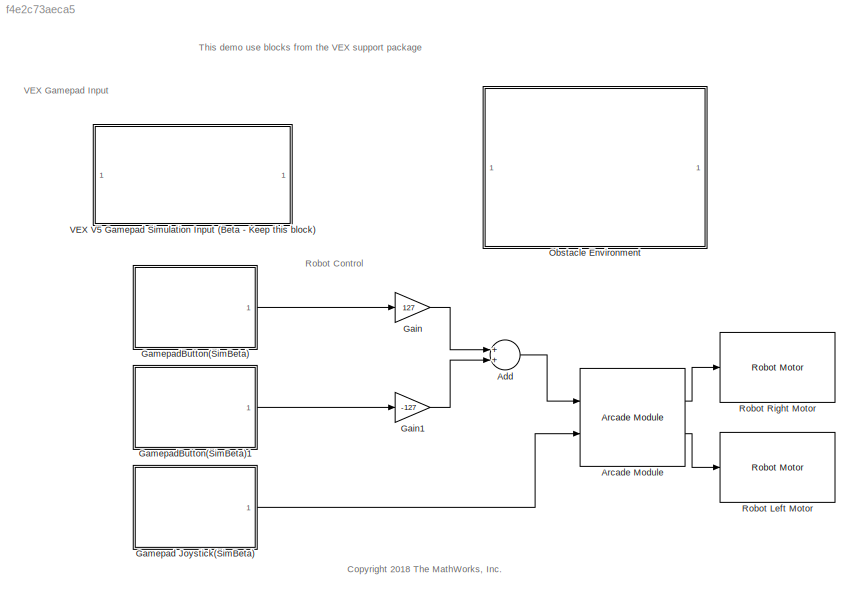
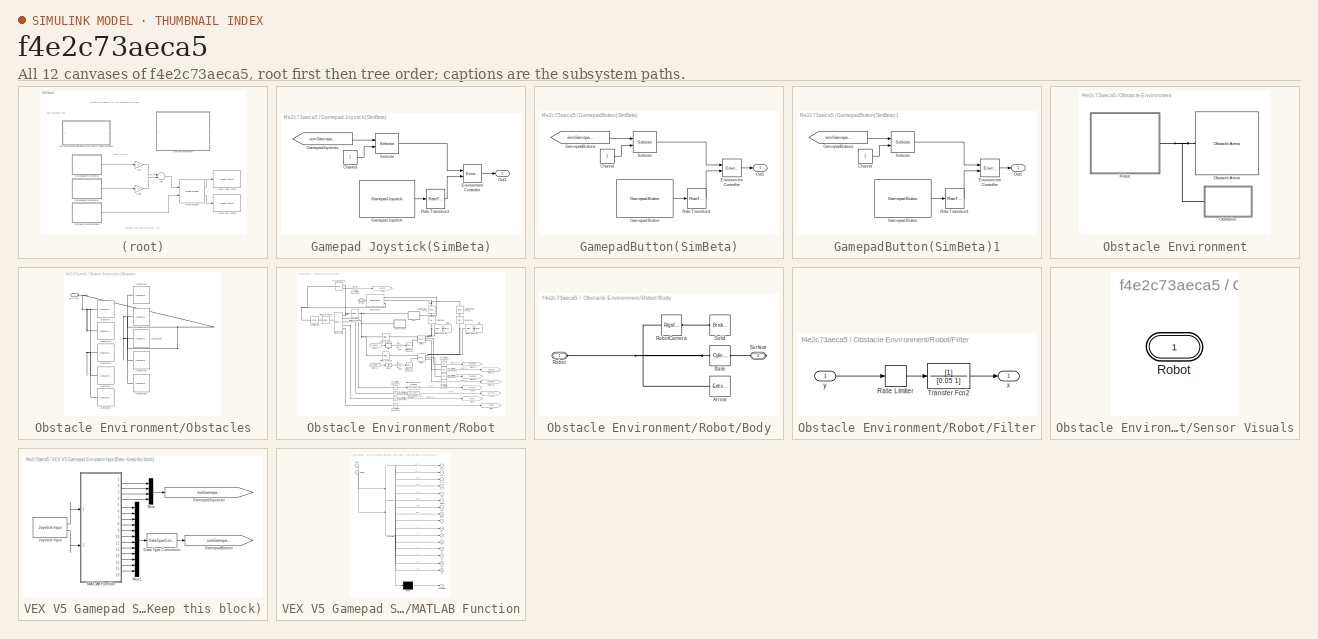
[diagram: thumbnail index - all 12 canvases of the model, root first then tree order]
MODEL slx_f4e2c73aeca5
KIND model
CONFIG AbsTol = auto
CONFIG EnableMultiTasking = on
CONFIG FixedStep = 0.01
CONFIG InitFcn = RPInit
CONFIG MaxStep = auto
CONFIG MinStep = auto
CONFIG RelTol = 1e-3
CONFIG SampleTimeConstraint = Unconstrained
CONFIG Solver = VariableStepAuto
CONFIG SolverName = VariableStepAuto
CONFIG StartTime = 0.0
CONFIG StopTime = inf
WORKSPACE source: mxarray member
WORKSPACE mapForSim: object (value not decoded)
WORKSPACE occGrid: robotics.BinaryOccupancyGrid (value not decoded)
BLOCK [Sum] Add
  InputSameDT = off
  OutDataTypeStr = Inherit: Inherit via internal rule
  Ports = [2, 1]
  SaturateOnIntegerOverflow = off
BLOCK [Reference] Arcade Module  REF=vexcommonlib/Arcade Module
  Ports = [2, 2]
  SourceBlock = vexcommonlib/Arcade Module
  SourceProductBaseCode = EC_VEX_MICRO
  SourceProductName = Simulink Coder Support Package for ARM Cortex-based VEX Microcontroller
  SourceType = Arcade-2 Motors Module
BLOCK [Gain] Gain
  Gain = 127
  OutDataTypeStr = Inherit: Inherit via internal rule
  ParamDataTypeStr = Inherit: Inherit via internal rule
  SaturateOnIntegerOverflow = off
BLOCK [Gain] Gain1
  Gain = -127
  OutDataTypeStr = Inherit: Inherit via internal rule
  ParamDataTypeStr = Inherit: Inherit via internal rule
  SaturateOnIntegerOverflow = off
BLOCK [SubSystem] Gamepad Joystick(SimBeta)
  Ports = [0, 1]
  RequestExecContextInheritance = off
BLOCK [Constant] Gamepad Joystick(SimBeta)/Channel
BLOCK [Reference] Gamepad Joystick(SimBeta)/Environment Controller  REF=simulink/Signal
Routing/Environment
Controller
  Ports = [2, 1]
  SourceBlock = simulink/Signal\nRouting/Environment\nController
  SourceProductBaseCode = SL
  SourceProductName = Simulink
  SourceType = Environment Controller
BLOCK [Reference] Gamepad Joystick(SimBeta)/Gamepad Joystick  REF=vexv5lib/Gamepad/Gamepad Joystick
  Ports = [0, 1]
  SourceBlock = vexv5lib/Gamepad/Gamepad Joystick
  SourceProductBaseCode = VEXV5
  SourceProductName = Simulink Coder Support Package for VEX EDR V5 Robot Brain
  SourceType = Gamepad Joystick
BLOCK [From] Gamepad Joystick(SimBeta)/GamepadJoysticks
  GotoTag = simGamepadJoysticks_1
  TagVisibility = global
BLOCK [Outport] Gamepad Joystick(SimBeta)/Out1
  IconDisplay = Port number
BLOCK [RateTransition] Gamepad Joystick(SimBeta)/Rate Transition1
BLOCK [Selector] Gamepad Joystick(SimBeta)/Selector
  IndexOptions = Index vector (port)
  Indices = [1 3]
  InputPortWidth = 4
  OutputSizes = 1
  Ports = [2, 1]
BLOCK [SubSystem] GamepadButton(SimBeta)
  Ports = [0, 1]
  RequestExecContextInheritance = off
BLOCK [Constant] GamepadButton(SimBeta)/Channel
BLOCK [Reference] GamepadButton(SimBeta)/Environment Controller  REF=simulink/Signal
Routing/Environment
Controller
  Ports = [2, 1]
  SourceBlock = simulink/Signal\nRouting/Environment\nController
  SourceProductBaseCode = SL
  SourceProductName = Simulink
  SourceType = Environment Controller
BLOCK [Reference] GamepadButton(SimBeta)/Gamepad Button  REF=vexv5lib/Gamepad/Gamepad Button
  Ports = [0, 1]
  SourceBlock = vexv5lib/Gamepad/Gamepad Button
  SourceProductBaseCode = VEXV5
  SourceProductName = Simulink Coder Support Package for VEX EDR V5 Robot Brain
  SourceType = Gamepad Button
BLOCK [From] GamepadButton(SimBeta)/GamepadButtons
  GotoTag = simGamepadButtons_1
  TagVisibility = global
BLOCK [Outport] GamepadButton(SimBeta)/Out1
  IconDisplay = Port number
BLOCK [RateTransition] GamepadButton(SimBeta)/Rate Transition1
BLOCK [Selector] GamepadButton(SimBeta)/Selector
  IndexOptions = Index vector (port)
  Indices = [1 3]
  InputPortWidth = 12
  OutputSizes = 1
  Ports = [2, 1]
BLOCK [SubSystem] GamepadButton(SimBeta)1
  Ports = [0, 1]
  RequestExecContextInheritance = off
BLOCK [Constant] GamepadButton(SimBeta)1/Channel
  Value = 2
BLOCK [Reference] GamepadButton(SimBeta)1/Environment Controller  REF=simulink/Signal
Routing/Environment
Controller
  Ports = [2, 1]
  SourceBlock = simulink/Signal\nRouting/Environment\nController
  SourceProductBaseCode = SL
  SourceProductName = Simulink
  SourceType = Environment Controller
BLOCK [Reference] GamepadButton(SimBeta)1/Gamepad Button  REF=vexv5lib/Gamepad/Gamepad Button
  Ports = [0, 1]
  SourceBlock = vexv5lib/Gamepad/Gamepad Button
  SourceProductBaseCode = VEXV5
  SourceProductName = Simulink Coder Support Package for VEX EDR V5 Robot Brain
  SourceType = Gamepad Button
BLOCK [From] GamepadButton(SimBeta)1/GamepadButtons
  GotoTag = simGamepadButtons_1
  TagVisibility = global
BLOCK [Outport] GamepadButton(SimBeta)1/Out1
  IconDisplay = Port number
BLOCK [RateTransition] GamepadButton(SimBeta)1/Rate Transition1
BLOCK [Selector] GamepadButton(SimBeta)1/Selector
  IndexOptions = Index vector (port)
  Indices = [1 3]
  InputPortWidth = 12
  OutputSizes = 1
  Ports = [2, 1]
BLOCK [SubSystem] Obstacle Environment
  CopyFcn = set_param(gcs,'InitFcn','RPInit');\nset_param(gcs,'Solver','ode23t');\nset_param(gcs, 'EnablePacing', 'on')\nset_param(gcs, 'PacingRate', 1)
  Ports = []
  RequestExecContextInheritance = off
BLOCK [Reference] Obstacle Environment/Obstacle Arena  REF=RP_Simulator_Components/Obstacle Arena
  Ports = [0, 0, 0, 0, 0, 1]
  SourceBlock = RP_Simulator_Components/Obstacle Arena
  SourceType = RP Grid Arena
BLOCK [SubSystem] Obstacle Environment/Obstacles
  Ports = [0, 0, 0, 0, 0, 1]
  RequestExecContextInheritance = off
BLOCK [Reference] Obstacle Environment/Obstacles/Obstacle1  REF=RP_Simulator_Components/Obstacle Contact-Disc Robot
  Ports = [0, 0, 0, 0, 0, 1]
  SourceBlock = RP_Simulator_Components/Obstacle Contact-Disc Robot
  SourceType = RP Rectangle-Disc obstacle
BLOCK [Reference] Obstacle Environment/Obstacles/Obstacle10  REF=RP_Simulator_Components/Obstacle Contact-Disc Robot
  Commented = on
  Ports = [0, 0, 0, 0, 0, 1]
  SourceBlock = RP_Simulator_Components/Obstacle Contact-Disc Robot
  SourceType = RP Rectangle-Disc obstacle
BLOCK [Reference] Obstacle Environment/Obstacles/Obstacle2  REF=RP_Simulator_Components/Obstacle Contact-Disc Robot
  Ports = [0, 0, 0, 0, 0, 1]
  SourceBlock = RP_Simulator_Components/Obstacle Contact-Disc Robot
  SourceType = RP Rectangle-Disc obstacle
BLOCK [Reference] Obstacle Environment/Obstacles/Obstacle3  REF=RP_Simulator_Components/Obstacle Contact-Disc Robot
  Commented = on
  Ports = [0, 0, 0, 0, 0, 1]
  SourceBlock = RP_Simulator_Components/Obstacle Contact-Disc Robot
  SourceType = RP Rectangle-Disc obstacle
BLOCK [Reference] Obstacle Environment/Obstacles/Obstacle4  REF=RP_Simulator_Components/Obstacle Contact-Disc Robot
  Commented = on
  Ports = [0, 0, 0, 0, 0, 1]
  SourceBlock = RP_Simulator_Components/Obstacle Contact-Disc Robot
  SourceType = RP Rectangle-Disc obstacle
BLOCK [Reference] Obstacle Environment/Obstacles/Obstacle5  REF=RP_Simulator_Components/Obstacle Contact-Disc Robot
  Commented = on
  Ports = [0, 0, 0, 0, 0, 1]
  SourceBlock = RP_Simulator_Components/Obstacle Contact-Disc Robot
  SourceType = RP Rectangle-Disc obstacle
BLOCK [Reference] Obstacle Environment/Obstacles/Obstacle6  REF=RP_Simulator_Components/Obstacle Contact-Disc Robot
  Commented = on
  Ports = [0, 0, 0, 0, 0, 1]
  SourceBlock = RP_Simulator_Components/Obstacle Contact-Disc Robot
  SourceType = RP Rectangle-Disc obstacle
BLOCK [Reference] Obstacle Environment/Obstacles/Obstacle7  REF=RP_Simulator_Components/Obstacle Contact-Disc Robot
  Commented = on
  Ports = [0, 0, 0, 0, 0, 1]
  SourceBlock = RP_Simulator_Components/Obstacle Contact-Disc Robot
  SourceType = RP Rectangle-Disc obstacle
BLOCK [Reference] Obstacle Environment/Obstacles/Obstacle8  REF=RP_Simulator_Components/Obstacle Contact-Disc Robot
  Commented = on
  Ports = [0, 0, 0, 0, 0, 1]
  SourceBlock = RP_Simulator_Components/Obstacle Contact-Disc Robot
  SourceType = RP Rectangle-Disc obstacle
BLOCK [Reference] Obstacle Environment/Obstacles/Obstacle9  REF=RP_Simulator_Components/Obstacle Contact-Disc Robot
  Commented = on
  Ports = [0, 0, 0, 0, 0, 1]
  SourceBlock = RP_Simulator_Components/Obstacle Contact-Disc Robot
  SourceType = RP Rectangle-Disc obstacle
BLOCK [PMIOPort] Obstacle Environment/Obstacles/RP-Bus
  Side = Left
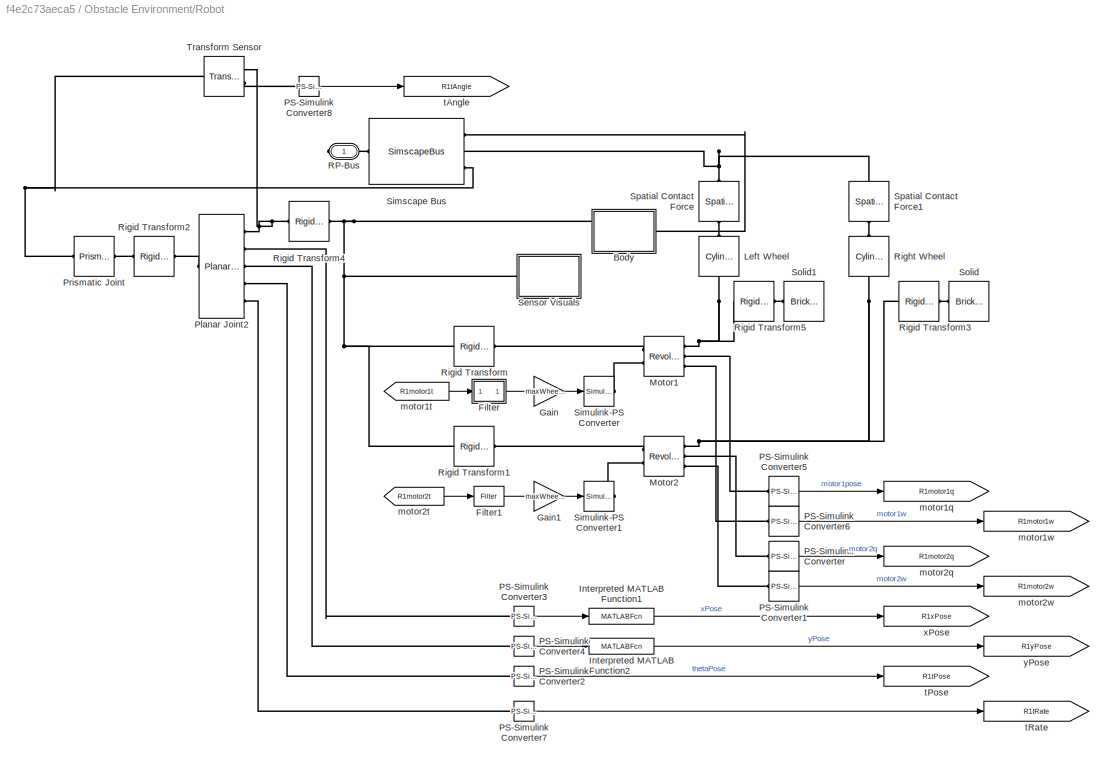
BLOCK [SubSystem] Obstacle Environment/Robot
  AncestorBlock = RP_Simulator_Components/Contact Tank Robot
  Ports = [0, 0, 0, 0, 0, 0, 1]
  RequestExecContextInheritance = off
BLOCK [SubSystem] Obstacle Environment/Robot/Body
  Ports = [0, 0, 0, 0, 0, 1, 1]
  RequestExecContextInheritance = off
BLOCK [Reference] Obstacle Environment/Robot/Body/Arrow  REF=sm_lib/Body Elements/Extruded Solid
  Ports = [0, 0, 0, 0, 0, 0, 1]
  SourceBlock = sm_lib/Body Elements/Extruded Solid
  SourceProductBaseCode = MS
  SourceProductName = Simscape Multibody
  SourceType = Extruded Solid
BLOCK [Reference] Obstacle Environment/Robot/Body/Base  REF=sm_lib/Body Elements/Cylindrical Solid
  Ports = [0, 0, 0, 0, 0, 1, 1]
  SourceBlock = sm_lib/Body Elements/Cylindrical Solid
  SourceProductBaseCode = MS
  SourceProductName = Simscape Multibody
  SourceType = Cylindrical Solid
BLOCK [PMIOPort] Obstacle Environment/Robot/Body/Robot
  Side = Left
BLOCK [Reference] Obstacle Environment/Robot/Body/RobotCamera  REF=sm_lib/Frames and
Transforms/Rigid
Transform
  Ports = [0, 0, 0, 0, 0, 1, 1]
  SourceBlock = sm_lib/Frames and\nTransforms/Rigid\nTransform
  SourceProductBaseCode = MS
  SourceProductName = Simscape Multibody
  SourceType = Rigid\nTransform
BLOCK [Reference] Obstacle Environment/Robot/Body/Solid  REF=sm_lib/Body Elements/Brick Solid
  Ports = [0, 0, 0, 0, 0, 0, 1]
  SourceBlock = sm_lib/Body Elements/Brick Solid
  SourceProductBaseCode = MS
  SourceProductName = Simscape Multibody
  SourceType = Brick Solid
BLOCK [PMIOPort] Obstacle Environment/Robot/Body/Surface
  Port = 2
  Side = Right
BLOCK [SubSystem] Obstacle Environment/Robot/Filter
  Ports = [1, 1]
  RequestExecContextInheritance = off
BLOCK [RateLimiter] Obstacle Environment/Robot/Filter/Rate Limiter
  FallingSlewLimit = -300
  RisingSlewLimit = 300
  SampleTimeMode = inherited
BLOCK [TransferFcn] Obstacle Environment/Robot/Filter/Transfer Fcn2
  Denominator = [0.05 1]
BLOCK [Outport] Obstacle Environment/Robot/Filter/x
  IconDisplay = Port number
  VectorParamsAs1DForOutWhenUnconnected = off
BLOCK [Inport] Obstacle Environment/Robot/Filter/y
  IconDisplay = Port number
BLOCK [Reference] Obstacle Environment/Robot/Filter1  REF=RP_Simulator_Components/Contact Tank Robot/Filter
  Ports = [1, 1]
  SourceBlock = RP_Simulator_Components/Contact Tank Robot/Filter
  SourceType = SubSystem
BLOCK [Gain] Obstacle Environment/Robot/Gain
  Gain = maxWheelTorque/127
  OutDataTypeStr = Inherit: Inherit via internal rule
  ParamDataTypeStr = Inherit: Inherit via internal rule
  SaturateOnIntegerOverflow = off
BLOCK [Gain] Obstacle Environment/Robot/Gain1
  Gain = maxWheelTorque/127
  OutDataTypeStr = Inherit: Inherit via internal rule
  ParamDataTypeStr = Inherit: Inherit via internal rule
  SaturateOnIntegerOverflow = off
BLOCK [MATLABFcn] Obstacle Environment/Robot/Interpreted MATLAB Function1
  MATLABFcn = u+floorSize(1)/2
  Ports = [1, 1]
BLOCK [MATLABFcn] Obstacle Environment/Robot/Interpreted MATLAB Function2
  MATLABFcn = u+floorSize(2)/2
  Ports = [1, 1]
BLOCK [Reference] Obstacle Environment/Robot/Left Wheel  REF=sm_lib/Body Elements/Cylindrical Solid
  Ports = [0, 0, 0, 0, 0, 1, 1]
  SourceBlock = sm_lib/Body Elements/Cylindrical Solid
  SourceProductBaseCode = MS
  SourceProductName = Simscape Multibody
  SourceType = Cylindrical Solid
BLOCK [Reference] Obstacle Environment/Robot/Motor1  REF=sm_lib/Joints/Revolute Joint
  Ports = [0, 0, 0, 0, 0, 2, 3]
  SourceBlock = sm_lib/Joints/Revolute Joint
  SourceProductBaseCode = MS
  SourceProductName = Simscape Multibody
  SourceType = Revolute Joint
BLOCK [Reference] Obstacle Environment/Robot/Motor2  REF=sm_lib/Joints/Revolute Joint
  Ports = [0, 0, 0, 0, 0, 2, 3]
  SourceBlock = sm_lib/Joints/Revolute Joint
  SourceProductBaseCode = MS
  SourceProductName = Simscape Multibody
  SourceType = Revolute Joint
BLOCK [Reference] Obstacle Environment/Robot/PS-Simulink Converter  REF=nesl_utility/PS-Simulink
Converter
  Ports = [0, 1, 0, 0, 0, 1]
  SourceBlock = nesl_utility/PS-Simulink\nConverter
  SourceProductBaseCode = SS
  SourceProductName = Simscape
  SourceType = PS-Simulink\nConverter
BLOCK [Reference] Obstacle Environment/Robot/PS-Simulink Converter1  REF=nesl_utility/PS-Simulink
Converter
  Ports = [0, 1, 0, 0, 0, 1]
  SourceBlock = nesl_utility/PS-Simulink\nConverter
  SourceProductBaseCode = SS
  SourceProductName = Simscape
  SourceType = PS-Simulink\nConverter
BLOCK [Reference] Obstacle Environment/Robot/PS-Simulink Converter2  REF=nesl_utility/PS-Simulink
Converter
  Ports = [0, 1, 0, 0, 0, 1]
  SourceBlock = nesl_utility/PS-Simulink\nConverter
  SourceProductBaseCode = SS
  SourceProductName = Simscape
  SourceType = PS-Simulink\nConverter
BLOCK [Reference] Obstacle Environment/Robot/PS-Simulink Converter3  REF=nesl_utility/PS-Simulink
Converter
  Ports = [0, 1, 0, 0, 0, 1]
  SourceBlock = nesl_utility/PS-Simulink\nConverter
  SourceProductBaseCode = SS
  SourceProductName = Simscape
  SourceType = PS-Simulink\nConverter
BLOCK [Reference] Obstacle Environment/Robot/PS-Simulink Converter4  REF=nesl_utility/PS-Simulink
Converter
  Ports = [0, 1, 0, 0, 0, 1]
  SourceBlock = nesl_utility/PS-Simulink\nConverter
  SourceProductBaseCode = SS
  SourceProductName = Simscape
  SourceType = PS-Simulink\nConverter
BLOCK [Reference] Obstacle Environment/Robot/PS-Simulink Converter5  REF=nesl_utility/PS-Simulink
Converter
  Ports = [0, 1, 0, 0, 0, 1]
  SourceBlock = nesl_utility/PS-Simulink\nConverter
  SourceProductBaseCode = SS
  SourceProductName = Simscape
  SourceType = PS-Simulink\nConverter
BLOCK [Reference] Obstacle Environment/Robot/PS-Simulink Converter6  REF=nesl_utility/PS-Simulink
Converter
  Ports = [0, 1, 0, 0, 0, 1]
  SourceBlock = nesl_utility/PS-Simulink\nConverter
  SourceProductBaseCode = SS
  SourceProductName = Simscape
  SourceType = PS-Simulink\nConverter
BLOCK [Reference] Obstacle Environment/Robot/PS-Simulink Converter7  REF=nesl_utility/PS-Simulink
Converter
  Ports = [0, 1, 0, 0, 0, 1]
  SourceBlock = nesl_utility/PS-Simulink\nConverter
  SourceProductBaseCode = SS
  SourceProductName = Simscape
  SourceType = PS-Simulink\nConverter
BLOCK [Reference] Obstacle Environment/Robot/PS-Simulink Converter8  REF=nesl_utility/PS-Simulink
Converter
  Ports = [0, 1, 0, 0, 0, 1]
  SourceBlock = nesl_utility/PS-Simulink\nConverter
  SourceProductBaseCode = SS
  SourceProductName = Simscape
  SourceType = PS-Simulink\nConverter
BLOCK [Reference] Obstacle Environment/Robot/Planar Joint2  REF=sm_lib/Joints/Planar Joint
  Ports = [0, 0, 0, 0, 0, 1, 5]
  SourceBlock = sm_lib/Joints/Planar Joint
  SourceProductBaseCode = MS
  SourceProductName = Simscape Multibody
  SourceType = Planar Joint
BLOCK [Reference] Obstacle Environment/Robot/Prismatic Joint  REF=sm_lib/Joints/Prismatic
Joint
  Ports = [0, 0, 0, 0, 0, 1, 1]
  SourceBlock = sm_lib/Joints/Prismatic\nJoint
  SourceProductBaseCode = MS
  SourceProductName = Simscape Multibody
  SourceType = Prismatic\nJoint
BLOCK [PMIOPort] Obstacle Environment/Robot/RP-Bus
  Side = Right
BLOCK [Reference] Obstacle Environment/Robot/Right Wheel  REF=sm_lib/Body Elements/Cylindrical Solid
  Ports = [0, 0, 0, 0, 0, 1, 1]
  SourceBlock = sm_lib/Body Elements/Cylindrical Solid
  SourceProductBaseCode = MS
  SourceProductName = Simscape Multibody
  SourceType = Cylindrical Solid
BLOCK [Reference] Obstacle Environment/Robot/Rigid Transform  REF=sm_lib/Frames and
Transforms/Rigid
Transform
  Ports = [0, 0, 0, 0, 0, 1, 1]
  SourceBlock = sm_lib/Frames and\nTransforms/Rigid\nTransform
  SourceProductBaseCode = MS
  SourceProductName = Simscape Multibody
  SourceType = Rigid\nTransform
BLOCK [Reference] Obstacle Environment/Robot/Rigid Transform1  REF=sm_lib/Frames and
Transforms/Rigid
Transform
  Ports = [0, 0, 0, 0, 0, 1, 1]
  SourceBlock = sm_lib/Frames and\nTransforms/Rigid\nTransform
  SourceProductBaseCode = MS
  SourceProductName = Simscape Multibody
  SourceType = Rigid\nTransform
BLOCK [Reference] Obstacle Environment/Robot/Rigid Transform2  REF=sm_lib/Frames and
Transforms/Rigid
Transform
  Ports = [0, 0, 0, 0, 0, 1, 1]
  SourceBlock = sm_lib/Frames and\nTransforms/Rigid\nTransform
  SourceProductBaseCode = MS
  SourceProductName = Simscape Multibody
  SourceType = Rigid\nTransform
BLOCK [Reference] Obstacle Environment/Robot/Rigid Transform3  REF=sm_lib/Frames and
Transforms/Rigid
Transform
  Ports = [0, 0, 0, 0, 0, 1, 1]
  SourceBlock = sm_lib/Frames and\nTransforms/Rigid\nTransform
  SourceProductBaseCode = MS
  SourceProductName = Simscape Multibody
  SourceType = Rigid\nTransform
BLOCK [Reference] Obstacle Environment/Robot/Rigid Transform4  REF=sm_lib/Frames and
Transforms/Rigid
Transform
  Ports = [0, 0, 0, 0, 0, 1, 1]
  SourceBlock = sm_lib/Frames and\nTransforms/Rigid\nTransform
  SourceProductBaseCode = MS
  SourceProductName = Simscape Multibody
  SourceType = Rigid\nTransform
BLOCK [Reference] Obstacle Environment/Robot/Rigid Transform5  REF=sm_lib/Frames and
Transforms/Rigid
Transform
  Ports = [0, 0, 0, 0, 0, 1, 1]
  SourceBlock = sm_lib/Frames and\nTransforms/Rigid\nTransform
  SourceProductBaseCode = MS
  SourceProductName = Simscape Multibody
  SourceType = Rigid\nTransform
BLOCK [SubSystem] Obstacle Environment/Robot/Sensor Visuals
  Ports = [0, 0, 0, 0, 0, 1]
  RequestExecContextInheritance = off
BLOCK [PMIOPort] Obstacle Environment/Robot/Sensor Visuals/Robot
  Side = Left
BLOCK [SimscapeBus] Obstacle Environment/Robot/Simscape Bus
  HierarchyStrings = RobotSurface;FloorSurface;Ref
  Ports = [0, 0, 0, 0, 0, 3, 1]
BLOCK [Reference] Obstacle Environment/Robot/Simulink-PS Converter  REF=nesl_utility/Simulink-PS
Converter
  Ports = [1, 0, 0, 0, 0, 0, 1]
  SourceBlock = nesl_utility/Simulink-PS\nConverter
  SourceProductBaseCode = SS
  SourceProductName = Simscape
  SourceType = Simulink-PS\nConverter
BLOCK [Reference] Obstacle Environment/Robot/Simulink-PS Converter1  REF=nesl_utility/Simulink-PS
Converter
  Ports = [1, 0, 0, 0, 0, 0, 1]
  SourceBlock = nesl_utility/Simulink-PS\nConverter
  SourceProductBaseCode = SS
  SourceProductName = Simscape
  SourceType = Simulink-PS\nConverter
BLOCK [Reference] Obstacle Environment/Robot/Solid  REF=sm_lib/Body Elements/Brick Solid
  Ports = [0, 0, 0, 0, 0, 0, 1]
  SourceBlock = sm_lib/Body Elements/Brick Solid
  SourceProductBaseCode = MS
  SourceProductName = Simscape Multibody
  SourceType = Brick Solid
BLOCK [Reference] Obstacle Environment/Robot/Solid1  REF=sm_lib/Body Elements/Brick Solid
  Ports = [0, 0, 0, 0, 0, 0, 1]
  SourceBlock = sm_lib/Body Elements/Brick Solid
  SourceProductBaseCode = MS
  SourceProductName = Simscape Multibody
  SourceType = Brick Solid
BLOCK [Reference] Obstacle Environment/Robot/Spatial Contact Force  REF=sm_lib/Forces and
Torques/Spatial
Contact Force
  Ports = [0, 0, 0, 0, 0, 1, 1]
  SourceBlock = sm_lib/Forces and\nTorques/Spatial\nContact Force
  SourceProductBaseCode = MS
  SourceProductName = Simscape Multibody
  SourceType = Spatial\nContact Force
BLOCK [Reference] Obstacle Environment/Robot/Spatial Contact Force1  REF=sm_lib/Forces and
Torques/Spatial
Contact Force
  Ports = [0, 0, 0, 0, 0, 1, 1]
  SourceBlock = sm_lib/Forces and\nTorques/Spatial\nContact Force
  SourceProductBaseCode = MS
  SourceProductName = Simscape Multibody
  SourceType = Spatial\nContact Force
BLOCK [Reference] Obstacle Environment/Robot/Transform Sensor  REF=sm_lib/Frames and
Transforms/Transform
Sensor
  Ports = [0, 0, 0, 0, 0, 1, 2]
  SourceBlock = sm_lib/Frames and\nTransforms/Transform\nSensor
  SourceProductBaseCode = MS
  SourceProductName = Simscape Multibody
  SourceType = Transform\nSensor
BLOCK [Goto] Obstacle Environment/Robot/motor1q
  GotoTag = R1motor1q
  TagVisibility = global
BLOCK [From] Obstacle Environment/Robot/motor1t
  GotoTag = R1motor1t
  TagVisibility = global
BLOCK [Goto] Obstacle Environment/Robot/motor1w
  GotoTag = R1motor1w
  TagVisibility = global
BLOCK [Goto] Obstacle Environment/Robot/motor2q
  GotoTag = R1motor2q
  TagVisibility = global
BLOCK [From] Obstacle Environment/Robot/motor2t
  GotoTag = R1motor2t
  TagVisibility = global
BLOCK [Goto] Obstacle Environment/Robot/motor2w
  GotoTag = R1motor2w
  TagVisibility = global
BLOCK [Goto] Obstacle Environment/Robot/tAngle
  GotoTag = R1tAngle
  TagVisibility = global
BLOCK [Goto] Obstacle Environment/Robot/tPose
  GotoTag = R1tPose
  TagVisibility = global
BLOCK [Goto] Obstacle Environment/Robot/tRate
  GotoTag = R1tRate
  TagVisibility = global
BLOCK [Goto] Obstacle Environment/Robot/xPose
  GotoTag = R1xPose
  TagVisibility = global
BLOCK [Goto] Obstacle Environment/Robot/yPose
  GotoTag = R1yPose
  TagVisibility = global
BLOCK [Reference] Robot Left Motor  REF=RoboticsPlayground/Basic Sensors and Actuators/Robot Motor
  Ports = [1]
  SourceBlock = RoboticsPlayground/Basic Sensors and Actuators/Robot Motor
  SourceProductName = Robotics Playground
  SourceType = RP Robot Motor
BLOCK [Reference] Robot Right Motor  REF=RoboticsPlayground/Basic Sensors and Actuators/Robot Motor
  Ports = [1]
  SourceBlock = RoboticsPlayground/Basic Sensors and Actuators/Robot Motor
  SourceProductName = Robotics Playground
  SourceType = RP Robot Motor
BLOCK [SubSystem] VEX V5 Gamepad Simulation Input (Beta - Keep this block)
  Ports = []
  RequestExecContextInheritance = off
BLOCK [DataTypeConversion] VEX V5 Gamepad Simulation Input (Beta - Keep this block)/Data Type Conversion
  OutDataTypeStr = double
  RndMeth = Floor
  SaturateOnIntegerOverflow = off
BLOCK [Goto] VEX V5 Gamepad Simulation Input (Beta - Keep this block)/GamepadButtons
  GotoTag = simGamepadButtons_1
  TagVisibility = global
BLOCK [Goto] VEX V5 Gamepad Simulation Input (Beta - Keep this block)/GamepadJoysticks
  GotoTag = simGamepadJoysticks_1
  TagVisibility = global
BLOCK [Reference] VEX V5 Gamepad Simulation Input (Beta - Keep this block)/Joystick Input  REF=vrlib/Joystick Input
  Ports = [0, 2]
  SourceBlock = vrlib/Joystick Input
  SourceProductBaseCode = SL
  SourceProductName = Simulink
  SourceType = Joystick Input
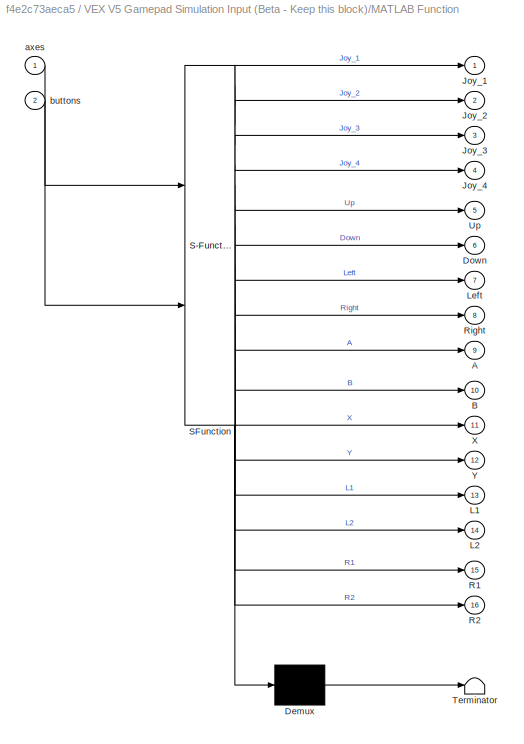
BLOCK [SubSystem] VEX V5 Gamepad Simulation Input (Beta - Keep this block)/MATLAB Function
  ErrorFcn = Stateflow.Translate.translate
  PermitHierarchicalResolution = ExplicitOnly
  Ports = [2, 16]
  RequestExecContextInheritance = off
  SFBlockType = MATLAB Function
  TreatAsAtomicUnit = on
BLOCK [Demux] VEX V5 Gamepad Simulation Input (Beta - Keep this block)/MATLAB Function/ Demux 
  Outputs = 1
  Ports = [1, 1]
BLOCK [S-Function] VEX V5 Gamepad Simulation Input (Beta - Keep this block)/MATLAB Function/ SFunction 
  EnableBusSupport = on
  FunctionName = sf_sfun
  PortCounts = [2 17]
  Ports = [2, 17]
  SFcnIsStateOwnerBlock = off
  SFunctionDeploymentMode = off
  Tag = Stateflow S-Function 2
BLOCK [Terminator] VEX V5 Gamepad Simulation Input (Beta - Keep this block)/MATLAB Function/ Terminator 
BLOCK [Outport] VEX V5 Gamepad Simulation Input (Beta - Keep this block)/MATLAB Function/A
  IconDisplay = Port number
  Port = 9
BLOCK [Outport] VEX V5 Gamepad Simulation Input (Beta - Keep this block)/MATLAB Function/B
  IconDisplay = Port number
  Port = 10
BLOCK [Outport] VEX V5 Gamepad Simulation Input (Beta - Keep this block)/MATLAB Function/Down
  IconDisplay = Port number
  Port = 6
BLOCK [Outport] VEX V5 Gamepad Simulation Input (Beta - Keep this block)/MATLAB Function/Joy_1
  IconDisplay = Port number
BLOCK [Outport] VEX V5 Gamepad Simulation Input (Beta - Keep this block)/MATLAB Function/Joy_2
  IconDisplay = Port number
  Port = 2
BLOCK [Outport] VEX V5 Gamepad Simulation Input (Beta - Keep this block)/MATLAB Function/Joy_3
  IconDisplay = Port number
  Port = 3
BLOCK [Outport] VEX V5 Gamepad Simulation Input (Beta - Keep this block)/MATLAB Function/Joy_4
  IconDisplay = Port number
  Port = 4
BLOCK [Outport] VEX V5 Gamepad Simulation Input (Beta - Keep this block)/MATLAB Function/L1
  IconDisplay = Port number
  Port = 13
BLOCK [Outport] VEX V5 Gamepad Simulation Input (Beta - Keep this block)/MATLAB Function/L2
  IconDisplay = Port number
  Port = 14
BLOCK [Outport] VEX V5 Gamepad Simulation Input (Beta - Keep this block)/MATLAB Function/Left
  IconDisplay = Port number
  Port = 7
BLOCK [Outport] VEX V5 Gamepad Simulation Input (Beta - Keep this block)/MATLAB Function/R1
  IconDisplay = Port number
  Port = 15
BLOCK [Outport] VEX V5 Gamepad Simulation Input (Beta - Keep this block)/MATLAB Function/R2
  IconDisplay = Port number
  Port = 16
BLOCK [Outport] VEX V5 Gamepad Simulation Input (Beta - Keep this block)/MATLAB Function/Right
  IconDisplay = Port number
  Port = 8
BLOCK [Outport] VEX V5 Gamepad Simulation Input (Beta - Keep this block)/MATLAB Function/Up
  IconDisplay = Port number
  Port = 5
BLOCK [Outport] VEX V5 Gamepad Simulation Input (Beta - Keep this block)/MATLAB Function/X
  IconDisplay = Port number
  Port = 11
BLOCK [Outport] VEX V5 Gamepad Simulation Input (Beta - Keep this block)/MATLAB Function/Y
  IconDisplay = Port number
  Port = 12
BLOCK [Inport] VEX V5 Gamepad Simulation Input (Beta - Keep this block)/MATLAB Function/axes
  IconDisplay = Port number
BLOCK [Inport] VEX V5 Gamepad Simulation Input (Beta - Keep this block)/MATLAB Function/buttons
  IconDisplay = Port number
  Port = 2
BLOCK [Mux] VEX V5 Gamepad Simulation Input (Beta - Keep this block)/Mux
  DisplayOption = bar
  Ports = [4, 1]
BLOCK [Mux] VEX V5 Gamepad Simulation Input (Beta - Keep this block)/Mux1
  DisplayOption = bar
  Inputs = 12
  Ports = [12, 1]
ANNOTATION (root): This demo use blocks from the VEX support package
ANNOTATION (root): <copyright redacted>
ANNOTATION (root): Robot Control
ANNOTATION (root): VEX Gamepad Input
LINE Add:1 -> Arcade Module:1
LINE Arcade Module:1 -> Robot Right Motor:1
LINE Arcade Module:2 -> Robot Left Motor:1
LINE Gain1:1 -> Add:2
LINE Gain:1 -> Add:1
LINE Gamepad Joystick(SimBeta)/Channel:1 -> Gamepad Joystick(SimBeta)/Selector:2
LINE Gamepad Joystick(SimBeta)/Environment Controller:1 -> Gamepad Joystick(SimBeta)/Out1:1
LINE Gamepad Joystick(SimBeta)/Gamepad Joystick:1 -> Gamepad Joystick(SimBeta)/Rate Transition1:1
LINE Gamepad Joystick(SimBeta)/GamepadJoysticks:1 -> Gamepad Joystick(SimBeta)/Selector:1
LINE Gamepad Joystick(SimBeta)/Rate Transition1:1 -> Gamepad Joystick(SimBeta)/Environment Controller:2
LINE Gamepad Joystick(SimBeta)/Selector:1 -> Gamepad Joystick(SimBeta)/Environment Controller:1
LINE Gamepad Joystick(SimBeta):1 -> Arcade Module:2
LINE GamepadButton(SimBeta)/Channel:1 -> GamepadButton(SimBeta)/Selector:2
LINE GamepadButton(SimBeta)/Environment Controller:1 -> GamepadButton(SimBeta)/Out1:1
LINE GamepadButton(SimBeta)/Gamepad Button:1 -> GamepadButton(SimBeta)/Rate Transition1:1
LINE GamepadButton(SimBeta)/GamepadButtons:1 -> GamepadButton(SimBeta)/Selector:1
LINE GamepadButton(SimBeta)/Rate Transition1:1 -> GamepadButton(SimBeta)/Environment Controller:2
LINE GamepadButton(SimBeta)/Selector:1 -> GamepadButton(SimBeta)/Environment Controller:1
LINE GamepadButton(SimBeta)1/Channel:1 -> GamepadButton(SimBeta)1/Selector:2
LINE GamepadButton(SimBeta)1/Environment Controller:1 -> GamepadButton(SimBeta)1/Out1:1
LINE GamepadButton(SimBeta)1/Gamepad Button:1 -> GamepadButton(SimBeta)1/Rate Transition1:1
LINE GamepadButton(SimBeta)1/GamepadButtons:1 -> GamepadButton(SimBeta)1/Selector:1
LINE GamepadButton(SimBeta)1/Rate Transition1:1 -> GamepadButton(SimBeta)1/Environment Controller:2
LINE GamepadButton(SimBeta)1/Selector:1 -> GamepadButton(SimBeta)1/Environment Controller:1
LINE GamepadButton(SimBeta)1:1 -> Gain1:1
LINE GamepadButton(SimBeta):1 -> Gain:1
LINE VEX V5 Gamepad Simulation Input (Beta - Keep this block)/Data Type Conversion:1 -> VEX V5 Gamepad Simulation Input (Beta - Keep this block)/GamepadButtons:1
LINE VEX V5 Gamepad Simulation Input (Beta - Keep this block)/Joystick Input:1 -> VEX V5 Gamepad Simulation Input (Beta - Keep this block)/MATLAB Function:1
LINE VEX V5 Gamepad Simulation Input (Beta - Keep this block)/Joystick Input:2 -> VEX V5 Gamepad Simulation Input (Beta - Keep this block)/MATLAB Function:2
LINE VEX V5 Gamepad Simulation Input (Beta - Keep this block)/MATLAB Function:1 -> VEX V5 Gamepad Simulation Input (Beta - Keep this block)/Mux:1
LINE VEX V5 Gamepad Simulation Input (Beta - Keep this block)/MATLAB Function:10 -> VEX V5 Gamepad Simulation Input (Beta - Keep this block)/Mux1:6
LINE VEX V5 Gamepad Simulation Input (Beta - Keep this block)/MATLAB Function:11 -> VEX V5 Gamepad Simulation Input (Beta - Keep this block)/Mux1:7
LINE VEX V5 Gamepad Simulation Input (Beta - Keep this block)/MATLAB Function:12 -> VEX V5 Gamepad Simulation Input (Beta - Keep this block)/Mux1:8
LINE VEX V5 Gamepad Simulation Input (Beta - Keep this block)/MATLAB Function:13 -> VEX V5 Gamepad Simulation Input (Beta - Keep this block)/Mux1:9
LINE VEX V5 Gamepad Simulation Input (Beta - Keep this block)/MATLAB Function:14 -> VEX V5 Gamepad Simulation Input (Beta - Keep this block)/Mux1:10
LINE VEX V5 Gamepad Simulation Input (Beta - Keep this block)/MATLAB Function:15 -> VEX V5 Gamepad Simulation Input (Beta - Keep this block)/Mux1:11
LINE VEX V5 Gamepad Simulation Input (Beta - Keep this block)/MATLAB Function:16 -> VEX V5 Gamepad Simulation Input (Beta - Keep this block)/Mux1:12
LINE VEX V5 Gamepad Simulation Input (Beta - Keep this block)/MATLAB Function:2 -> VEX V5 Gamepad Simulation Input (Beta - Keep this block)/Mux:2
LINE VEX V5 Gamepad Simulation Input (Beta - Keep this block)/MATLAB Function:3 -> VEX V5 Gamepad Simulation Input (Beta - Keep this block)/Mux:3
LINE VEX V5 Gamepad Simulation Input (Beta - Keep this block)/MATLAB Function:4 -> VEX V5 Gamepad Simulation Input (Beta - Keep this block)/Mux:4
LINE VEX V5 Gamepad Simulation Input (Beta - Keep this block)/MATLAB Function:5 -> VEX V5 Gamepad Simulation Input (Beta - Keep this block)/Mux1:1
LINE VEX V5 Gamepad Simulation Input (Beta - Keep this block)/MATLAB Function:6 -> VEX V5 Gamepad Simulation Input (Beta - Keep this block)/Mux1:2
LINE VEX V5 Gamepad Simulation Input (Beta - Keep this block)/MATLAB Function:7 -> VEX V5 Gamepad Simulation Input (Beta - Keep this block)/Mux1:3
LINE VEX V5 Gamepad Simulation Input (Beta - Keep this block)/MATLAB Function:8 -> VEX V5 Gamepad Simulation Input (Beta - Keep this block)/Mux1:4
LINE VEX V5 Gamepad Simulation Input (Beta - Keep this block)/MATLAB Function:9 -> VEX V5 Gamepad Simulation Input (Beta - Keep this block)/Mux1:5
LINE VEX V5 Gamepad Simulation Input (Beta - Keep this block)/Mux1:1 -> VEX V5 Gamepad Simulation Input (Beta - Keep this block)/Data Type Conversion:1
LINE VEX V5 Gamepad Simulation Input (Beta - Keep this block)/Mux:1 -> VEX V5 Gamepad Simulation Input (Beta - Keep this block)/GamepadJoysticks:1
CHART VEX V5 Gamepad
Simulation Input (Beta - Keep this block)/MATLAB Function states=1 transitions=1
  STATE_LABEL 'eML_blk_kernel()'
  STATE_LABEL 'SCRIPT:\nfunction [Joy_1,Joy_2,Joy_3,Joy_4,Up,Down,Left,Right,A,B,X,Y,L1,L2,R1,R2] = V5_Mappings(axes, buttons)\n\n\nJoy_3=-127*axes(2);\nJoy_4=-127*axes(1);\nJoy_1=-127*axes(3);\nJoy_2=-127*axes(4);\nUp=buttons(3);\nDown=buttons(1);\nLeft=buttons(4);\nRight=buttons(2);\nA=buttons(11);\nB=buttons(10);\nX=buttons(12);\nY=buttons(9);\nL1=buttons(14);\nL2=buttons(13);\nR1=buttons(5);\nR2=buttons(6);\n\n'
